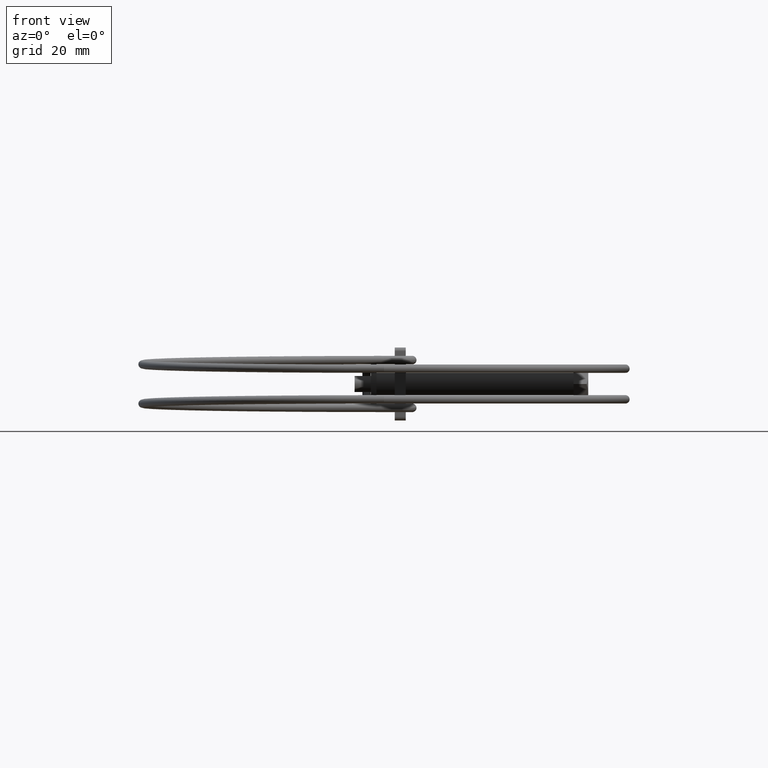
[diagram: clean part render]
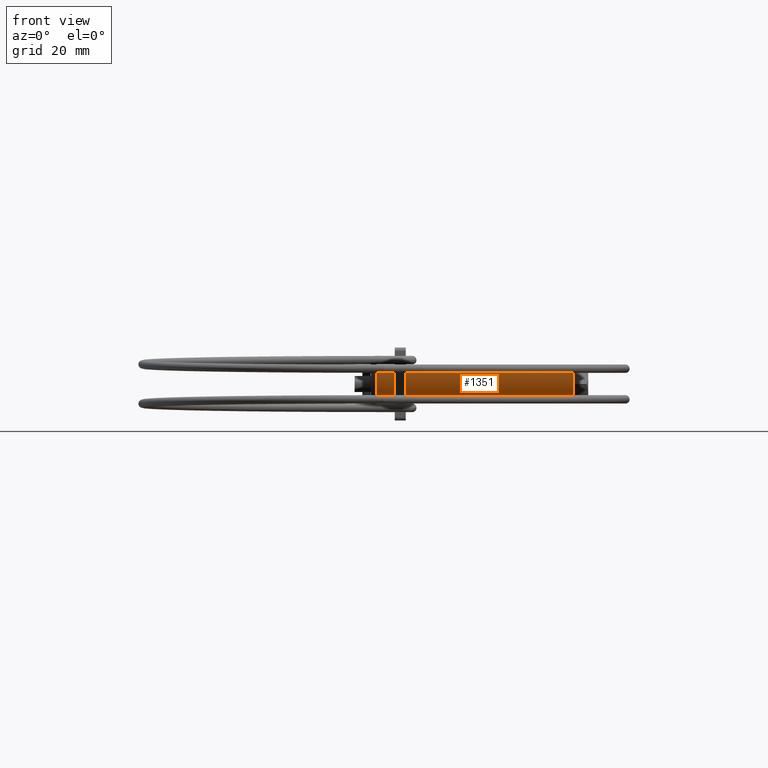
[diagram: same view with one face highlighted and labeled with its STEP entity id]
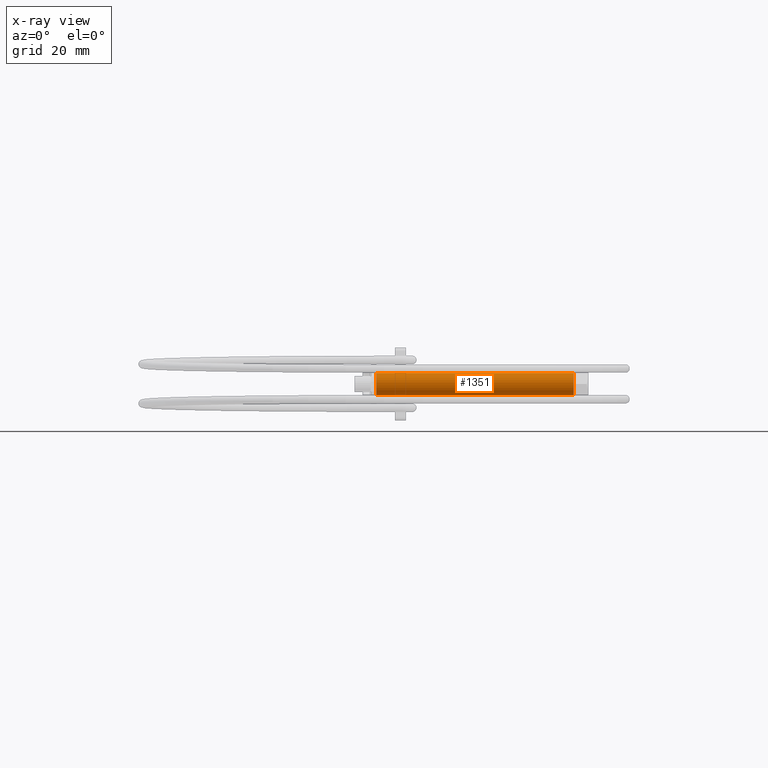
[diagram: x-ray of the same camera — body ghosted, the highlighted face saturated]
A machine part, front view. The second image highlights one B-rep face of the part: STEP entity #1351.
The next image is the same camera in x-ray: the body ghosted, the highlighted face saturated — about 0% of this face is hidden behind the body in this view.
In plain terms, the highlighted cylindrical surface (edge-blend (fillet) strip) has radius 3 mm, axis along (1, 0, 0).
Its self-contained STEP definition (entity closure, byte-faithful):
#9 = EDGE_CURVE ( 'NONE', #420, #1024, #2662, .T. ) ;
#10 = CARTESIAN_POINT ( 'NONE',  ( -54.00000000000000000, 0.0000000000000000000, -3.000000000000000400 ) ) ;
#66 = AXIS2_PLACEMENT_3D ( 'NONE', #1930, #1896, #1688 ) ;
#242 = DIRECTION ( 'NONE',  ( 1.000000000000000000, 0.0000000000000000000, 0.0000000000000000000 ) ) ;
#259 = CARTESIAN_POINT ( 'NONE',  ( 0.0000000000000000000, 0.0000000000000000000, -3.000000000000000400 ) ) ;
#270 = ORIENTED_EDGE ( 'NONE', *, *, #9, .F. ) ;
#296 = CARTESIAN_POINT ( 'NONE',  ( -54.00000000000000000, 3.673940397442060400E-016, 3.000000000000000400 ) ) ;
#420 = VERTEX_POINT ( 'NONE', #296 ) ;
#456 = EDGE_CURVE ( 'NONE', #1024, #2590, #2746, .T. ) ;
#545 = DIRECTION ( 'NONE',  ( 0.0000000000000000000, 0.0000000000000000000, 1.000000000000000000 ) ) ;
#605 = ORIENTED_EDGE ( 'NONE', *, *, #456, .F. ) ;
#665 = AXIS2_PLACEMENT_3D ( 'NONE', #2681, #2964, #1523 ) ;
#808 = CARTESIAN_POINT ( 'NONE',  ( 0.0000000000000000000, 3.673940397442060400E-016, 3.000000000000000400 ) ) ;
#1024 = VERTEX_POINT ( 'NONE', #808 ) ;
#1351 = ADVANCED_FACE ( 'NONE', ( #2416 ), #2963, .T. ) ;
#1393 = CIRCLE ( 'NONE', #2497, 3.000000000000000400 ) ;
#1505 = CARTESIAN_POINT ( 'NONE',  ( -54.00000000000000000, 0.0000000000000000000, 0.0000000000000000000 ) ) ;
#1523 = DIRECTION ( 'NONE',  ( 0.0000000000000000000, 0.0000000000000000000, -1.000000000000000000 ) ) ;
#1525 = EDGE_CURVE ( 'NONE', #420, #1774, #1393, .T. ) ;
#1646 = EDGE_LOOP ( 'NONE', ( #270, #3109, #1876, #605 ) ) ;
#1688 = DIRECTION ( 'NONE',  ( 0.0000000000000000000, 0.0000000000000000000, -1.000000000000000000 ) ) ;
#1774 = VERTEX_POINT ( 'NONE', #10 ) ;
#1845 = CARTESIAN_POINT ( 'NONE',  ( -54.00000000000000000, 3.673940397442060400E-016, 3.000000000000000400 ) ) ;
#1874 = LINE ( 'NONE', #1933, #2519 ) ;
#1876 = ORIENTED_EDGE ( 'NONE', *, *, #2555, .T. ) ;
#1896 = DIRECTION ( 'NONE',  ( 1.000000000000000000, 0.0000000000000000000, 0.0000000000000000000 ) ) ;
#1930 = CARTESIAN_POINT ( 'NONE',  ( -54.00000000000000000, 0.0000000000000000000, 0.0000000000000000000 ) ) ;
#1933 = CARTESIAN_POINT ( 'NONE',  ( -54.00000000000000000, 0.0000000000000000000, -3.000000000000000400 ) ) ;
#1982 = DIRECTION ( 'NONE',  ( 1.000000000000000000, -0.0000000000000000000, -0.0000000000000000000 ) ) ;
#2025 = VECTOR ( 'NONE', #2594, 1000.000000000000000 ) ;
#2416 = FACE_OUTER_BOUND ( 'NONE', #1646, .T. ) ;
#2497 = AXIS2_PLACEMENT_3D ( 'NONE', #1505, #1982, #545 ) ;
#2519 = VECTOR ( 'NONE', #242, 1000.000000000000000 ) ;
#2555 = EDGE_CURVE ( 'NONE', #1774, #2590, #1874, .T. ) ;
#2590 = VERTEX_POINT ( 'NONE', #259 ) ;
#2594 = DIRECTION ( 'NONE',  ( 1.000000000000000000, 0.0000000000000000000, 0.0000000000000000000 ) ) ;
#2662 = LINE ( 'NONE', #1845, #2025 ) ;
#2681 = CARTESIAN_POINT ( 'NONE',  ( 0.0000000000000000000, 0.0000000000000000000, 0.0000000000000000000 ) ) ;
#2746 = CIRCLE ( 'NONE', #665, 3.000000000000000400 ) ;
#2963 = CYLINDRICAL_SURFACE ( 'NONE', #66, 3.000000000000000400 ) ;
#2964 = DIRECTION ( 'NONE',  ( 1.000000000000000000, 0.0000000000000000000, 0.0000000000000000000 ) ) ;
#3109 = ORIENTED_EDGE ( 'NONE', *, *, #1525, .T. ) ;